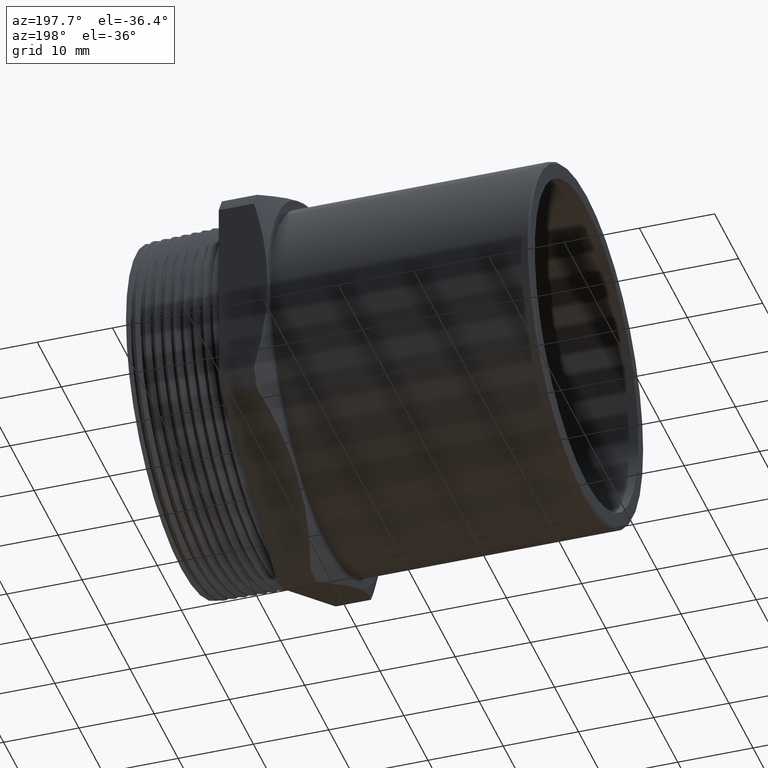
[diagram: clean part render]
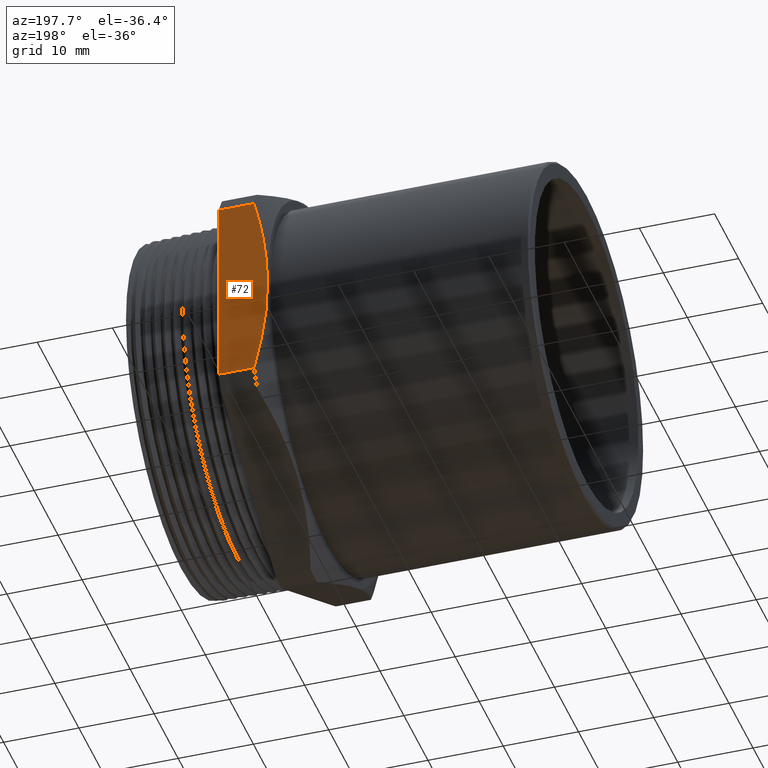
[diagram: same view with one face highlighted and labeled with its STEP entity id]
A machine part, auxiliary view. The second image highlights one B-rep face of the part: STEP entity #72.
In plain terms, the highlighted planar face has unit normal (0, -1, 0).
Its self-contained STEP definition (entity closure, byte-faithful):
#68 = ORIENTED_EDGE ( 'NONE', *, *, #141, .F. ) ;
#69 = EDGE_CURVE ( 'NONE', #327, #212, #1083, .T. ) ;
#72 = ADVANCED_FACE ( 'NONE', ( #1122 ), #1120, .F. ) ;
#74 = ORIENTED_EDGE ( 'NONE', *, *, #69, .F. ) ;
#75 = EDGE_LOOP ( 'NONE', ( #74, #68, #96, #84, #88 ) ) ;
#84 = ORIENTED_EDGE ( 'NONE', *, *, #315, .T. ) ;
#88 = ORIENTED_EDGE ( 'NONE', *, *, #89, .F. ) ;
#89 = EDGE_CURVE ( 'NONE', #212, #309, #1143, .T. ) ;
#93 = EDGE_CURVE ( 'NONE', #335, #294, #1142, .T. ) ;
#96 = ORIENTED_EDGE ( 'NONE', *, *, #93, .T. ) ;
#141 = EDGE_CURVE ( 'NONE', #335, #327, #1221, .T. ) ;
#212 = VERTEX_POINT ( 'NONE', #1402 ) ;
#294 = VERTEX_POINT ( 'NONE', #1539 ) ;
#309 = VERTEX_POINT ( 'NONE', #1579 ) ;
#315 = EDGE_CURVE ( 'NONE', #294, #309, #1576, .T. ) ;
#327 = VERTEX_POINT ( 'NONE', #1614 ) ;
#335 = VERTEX_POINT ( 'NONE', #1602 ) ;
#1083 = B_SPLINE_CURVE_WITH_KNOTS ( 'NONE', 3,
 ( #1130, #1129, #1128, #1127, #1126, #1125, #1124, #1123 ),
 .UNSPECIFIED., .F., .F.,
 ( 4, 2, 2, 4 ),
 ( 0.01326252923277522500, 0.01975001947055427300, 0.02299376458944379900, 0.02623750970833332500 ),
 .UNSPECIFIED. ) ;
#1107 = DIRECTION ( 'NONE',  ( 0.0000000000000000000, -0.0000000000000000000, -1.000000000000000000 ) ) ;
#1117 = CARTESIAN_POINT ( 'NONE',  ( 2.655593315685465400, 0.9850000000000005400, -0.5076573801541733900 ) ) ;
#1118 = AXIS2_PLACEMENT_3D ( 'NONE', #1117, #1119, #1107 ) ;
#1119 = DIRECTION ( 'NONE',  ( 0.0000000000000000000, -1.000000000000000000, 0.0000000000000000000 ) ) ;
#1120 = PLANE ( 'NONE',  #1118 ) ;
#1122 = FACE_OUTER_BOUND ( 'NONE', #75, .T. ) ;
#1123 = CARTESIAN_POINT ( 'NONE',  ( -0.7649999999999999000, 0.9850000000000005400, 0.0000000000000000000 ) ) ;
#1124 = CARTESIAN_POINT ( 'NONE',  ( -0.7649999999999994600, 0.9850000000000004300, 0.04272697525370579300 ) ) ;
#1125 = CARTESIAN_POINT ( 'NONE',  ( -0.7633881433621460000, 0.9850000000000006500, 0.08555372013344898800 ) ) ;
#1126 = CARTESIAN_POINT ( 'NONE',  ( -0.7569772808643873100, 0.9850000000000006500, 0.1714044859276286100 ) ) ;
#1127 = CARTESIAN_POINT ( 'NONE',  ( -0.7521610286987041600, 0.9850000000000008700, 0.2144599529569887200 ) ) ;
#1128 = CARTESIAN_POINT ( 'NONE',  ( -0.7335857179892180100, 0.9850000000000006500, 0.3419228613100633900 ) ) ;
#1129 = CARTESIAN_POINT ( 'NONE',  ( -0.7156869809723026600, 0.9850000000000006500, 0.4253380944157901200 ) ) ;
#1130 = CARTESIAN_POINT ( 'NONE',  ( -0.6939137481060275700, 0.9850000000000005400, 0.5076573801541733900 ) ) ;
#1131 = CARTESIAN_POINT ( 'NONE',  ( -0.6939137481060275700, 0.9850000000000006500, -0.5076573801541733900 ) ) ;
#1132 = CARTESIAN_POINT ( 'NONE',  ( -0.7048823514959400300, 0.9850000000000008700, -0.4661877645876324500 ) ) ;
#1133 = CARTESIAN_POINT ( 'NONE',  ( -0.7149040227253348200, 0.9850000000000006500, -0.4242766614197300800 ) ) ;
#1134 = CARTESIAN_POINT ( 'NONE',  ( -0.7325233619301994000, 0.9850000000000006500, -0.3398917577594928700 ) ) ;
#1135 = CARTESIAN_POINT ( 'NONE',  ( -0.7400789254296752400, 0.9850000000000003200, -0.2976216801070990000 ) ) ;
#1136 = CARTESIAN_POINT ( 'NONE',  ( -0.7584838622036295100, 0.9850000000000006500, -0.1705476559631773100 ) ) ;
#1137 = CARTESIAN_POINT ( 'NONE',  ( -0.7649999999999997900, 0.9850000000000006500, -0.08547549375504662200 ) ) ;
#1138 = CARTESIAN_POINT ( 'NONE',  ( -0.7649999999999999000, 0.9850000000000005400, 0.0000000000000000000 ) ) ;
#1139 = DIRECTION ( 'NONE',  ( 0.0000000000000000000, 0.0000000000000000000, -1.000000000000000000 ) ) ;
#1140 = VECTOR ( 'NONE', #1139, 39.37007874015748100 ) ;
#1141 = CARTESIAN_POINT ( 'NONE',  ( -0.5099999999999997900, 0.9850000000000005400, -0.5076573801541733900 ) ) ;
#1142 = LINE ( 'NONE', #1141, #1140 ) ;
#1143 = B_SPLINE_CURVE_WITH_KNOTS ( 'NONE', 3,
 ( #1138, #1137, #1136, #1135, #1134, #1133, #1132, #1131 ),
 .UNSPECIFIED., .F., .F.,
 ( 4, 2, 2, 4 ),
 ( 0.02623750970833332500, 0.03272663546568627800, 0.03597119834436275600, 0.03921576122303923500 ),
 .UNSPECIFIED. ) ;
#1218 = DIRECTION ( 'NONE',  ( -1.000000000000000000, 0.0000000000000000000, 0.0000000000000000000 ) ) ;
#1219 = VECTOR ( 'NONE', #1218, 39.37007874015748100 ) ;
#1220 = CARTESIAN_POINT ( 'NONE',  ( 2.655593315685465400, 0.9850000000000005400, 0.5076573801541733900 ) ) ;
#1221 = LINE ( 'NONE', #1220, #1219 ) ;
#1402 = CARTESIAN_POINT ( 'NONE',  ( -0.7649999999999999000, 0.9850000000000005400, 0.0000000000000000000 ) ) ;
#1539 = CARTESIAN_POINT ( 'NONE',  ( -0.5099999999999997900, 0.9850000000000005400, -0.5076573801541732800 ) ) ;
#1573 = DIRECTION ( 'NONE',  ( -1.000000000000000000, 0.0000000000000000000, 0.0000000000000000000 ) ) ;
#1574 = VECTOR ( 'NONE', #1573, 39.37007874015748100 ) ;
#1575 = CARTESIAN_POINT ( 'NONE',  ( 2.655593315685465400, 0.9850000000000004300, -0.5076573801541732800 ) ) ;
#1576 = LINE ( 'NONE', #1575, #1574 ) ;
#1579 = CARTESIAN_POINT ( 'NONE',  ( -0.6939137481060275700, 0.9850000000000006500, -0.5076573801541733900 ) ) ;
#1602 = CARTESIAN_POINT ( 'NONE',  ( -0.5100000000000000100, 0.9850000000000005400, 0.5076573801541733900 ) ) ;
#1614 = CARTESIAN_POINT ( 'NONE',  ( -0.6939137481060275700, 0.9850000000000005400, 0.5076573801541733900 ) ) ;